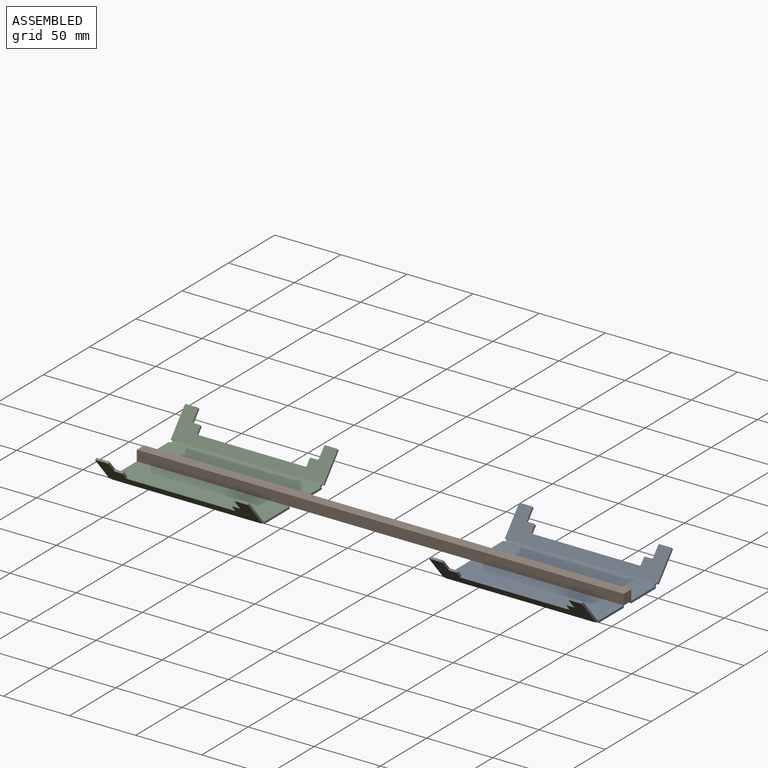
[diagram: assembled view]
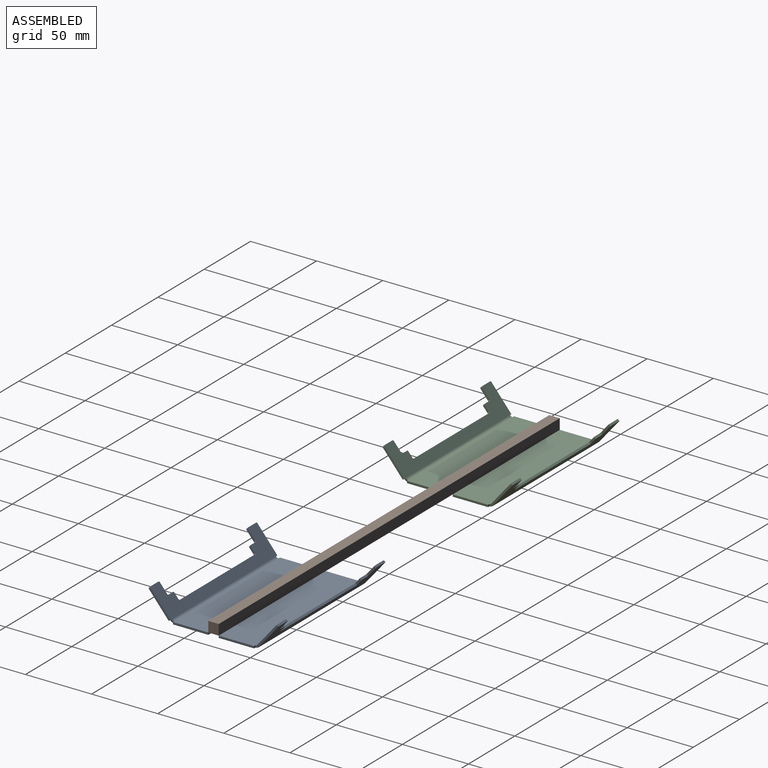
[diagram: assembled view, second angle]
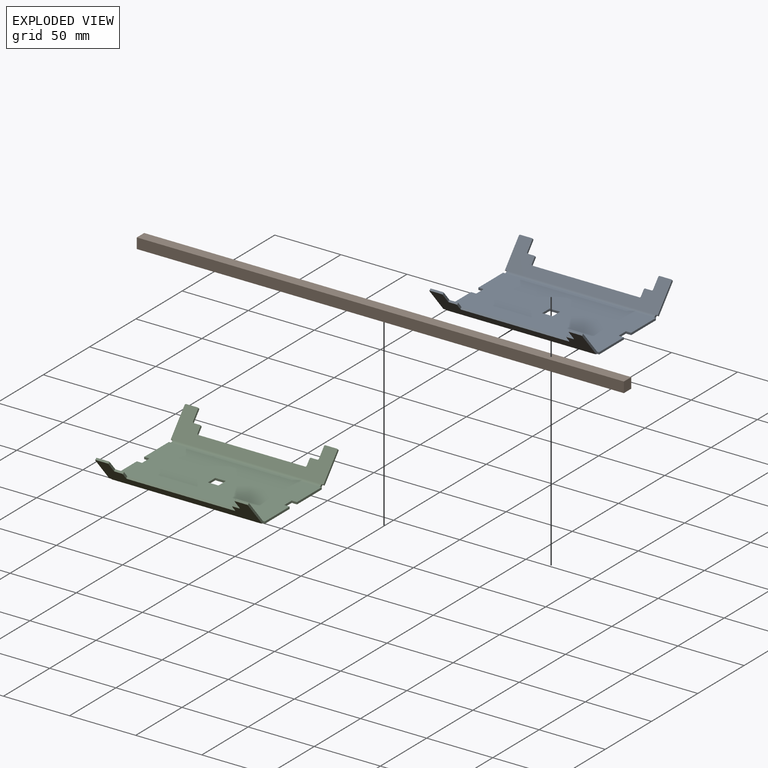
[diagram: exploded view]
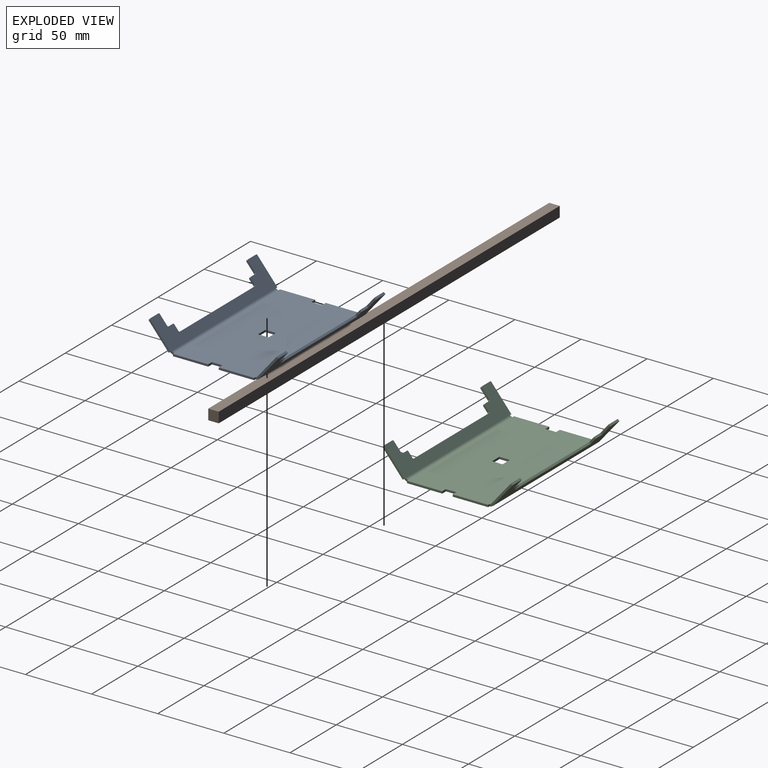
[diagram: exploded view, second angle]
ASSEMBLY  parts=3 mates=2
PART A: 78 faces, bbox 115.6x98.8x21 mm
  f0: plane 18.99x16.29mm, normal (1,0,0), area 37.2mm2, adj f20,f21,f22,f23
  f1: plane 8.64x1.22mm, normal (0,-0.64,0.77), area 13.7mm2, adj f2,f21,f22,f23
  f2: cylinder r=0.76mm len=1.71mm, axis (0,0.77,0.64), area 1.9mm2, adj f1,f3,f21,f22
  f3: plane 7.64x6.77mm, normal (-1,0,0), area 13.7mm2, adj f2,f4,f21,f22
  f4: cylinder r=0.76mm len=1.71mm, axis (0,0.77,0.64), area 1.9mm2, adj f3,f5,f21,f22
  f5: plane 4.83x1.22mm, normal (0,-0.64,0.77), area 7.7mm2, adj f4,f6,f21,f22
  f6: cylinder r=0.76mm len=1.71mm, axis (0,0.77,0.64), area 1.9mm2, adj f5,f7,f21,f22
  f7: plane 4.72x4.32mm, normal (-1,0,0), area 7.7mm2, adj f6,f8,f21,f22
  f8: cylinder r=0.76mm len=1.71mm, axis (0,0.77,0.64), area 1.9mm2, adj f7,f9,f21,f22
  f9: plane 81.03x1.22mm, normal (0,-0.64,0.77), area 128.6mm2, adj f8,f10,f21,f22
  f10: cylinder r=0.76mm len=1.71mm, axis (0,0.77,0.64), area 1.9mm2, adj f9,f11,f21,f22
  f11: plane 4.72x4.32mm, normal (1,0,0), area 7.7mm2, adj f10,f12,f21,f22
  f12: cylinder r=0.76mm len=1.71mm, axis (0,0.77,0.64), area 1.9mm2, adj f11,f13,f21,f22
  f13: plane 4.83x1.22mm, normal (0,-0.64,0.77), area 7.7mm2, adj f12,f14,f21,f22
  f14: cylinder r=0.76mm len=1.71mm, axis (0,0.77,0.64), area 1.9mm2, adj f13,f15,f21,f22
  f15: plane 7.64x6.77mm, normal (1,0,0), area 13.7mm2, adj f14,f16,f21,f22
  f16: cylinder r=0.76mm len=1.71mm, axis (0,0.77,0.64), area 1.9mm2, adj f15,f17,f21,f22
  f17: plane 8.64x1.22mm, normal (0,-0.64,0.77), area 13.7mm2, adj f16,f21,f22,f24
  f18: plane 18.99x16.29mm, normal (-1,0,0), area 37.2mm2, adj f19,f21,f22,f24
  f19: plane 1.52x1.22mm, normal (0,0.64,-0.77), area 2.4mm2, adj f18,f21,f22,f74
  f20: plane 1.52x1.22mm, normal (0,0.64,-0.77), area 2.4mm2, adj f0,f21,f22,f75
  f21: plane 115.57x18.55mm, normal (0,-0.77,-0.64), area 1306.4mm2, adj f0,f1,f2,f3,f4,f5,f6,f7
  f22: plane 115.57x18.55mm, normal (0,0.77,0.64), area 1306.4mm2, adj f0,f1,f2,f3,f4,f5,f6,f7
  f23: cylinder r=0.76mm len=1.71mm, axis (0,0.77,0.64), area 1.9mm2, adj f0,f1,f21,f22
  f24: cylinder r=0.76mm len=1.71mm, axis (0,-0.77,-0.64), area 1.9mm2, adj f17,f18,f21,f22
  f25: plane 26.69x1.59mm, normal (1,0,0), area 42.4mm2, adj f26,f42,f43,f44
  f26: plane 1.59x1.52mm, normal (0,-1,0), area 2.4mm2, adj f25,f43,f44,f75
  f27: plane 1.59x1.52mm, normal (0,-1,0), area 2.4mm2, adj f28,f43,f44,f74
  f28: plane 26.69x1.59mm, normal (-1,0,0), area 42.4mm2, adj f27,f29,f43,f44
  f29: plane 3.97x1.59mm, normal (0,1,0), area 6.3mm2, adj f28,f30,f43,f44
  f30: plane 7.94x1.59mm, normal (-1,0,0), area 12.6mm2, adj f29,f31,f43,f44
  f31: plane 3.97x1.59mm, normal (0,-1,0), area 6.3mm2, adj f30,f32,f43,f44
  f32: plane 26.69x1.59mm, normal (-1,0,0), area 42.4mm2, adj f31,f33,f43,f44
  f33: plane 1.59x1.52mm, normal (0,1,0), area 2.4mm2, adj f32,f43,f44,f70
  f34: plane 1.59x1.52mm, normal (0,1,0), area 2.4mm2, adj f35,f43,f44,f71
  f35: plane 26.69x1.59mm, normal (1,0,0), area 42.4mm2, adj f34,f36,f43,f44
  f36: plane 3.97x1.59mm, normal (0,-1,0), area 6.3mm2, adj f35,f37,f43,f44
  f37: plane 7.94x1.59mm, normal (1,0,0), area 12.6mm2, adj f36,f42,f43,f44
  f38: plane 7.94x1.59mm, normal (0,-1,0), area 12.6mm2, adj f39,f41,f43,f44
  f39: plane 7.94x1.59mm, normal (1,0,0), area 12.6mm2, adj f38,f40,f43,f44
  f40: plane 7.94x1.59mm, normal (0,1,0), area 12.6mm2, adj f39,f41,f43,f44
  f41: plane 7.94x1.59mm, normal (-1,0,0), area 12.6mm2, adj f38,f40,f43,f44
  f42: plane 3.97x1.59mm, normal (0,1,0), area 6.3mm2, adj f25,f37,f43,f44
  f43: plane 115.57x61.31mm, normal (0,0,-1), area 6959.5mm2, adj f25,f26,f27,f28,f29,f30,f31,f32
  f44: plane 115.57x61.31mm, normal (0,0,1), area 6959.5mm2, adj f25,f26,f27,f28,f29,f30,f31,f32
  f45: plane 1.52x1.22mm, normal (0,-0.64,-0.77), area 2.4mm2, adj f46,f66,f67,f70
  f46: plane 18.99x16.29mm, normal (-1,0,0), area 37.2mm2, adj f45,f66,f67,f68
  f47: plane 8.64x1.22mm, normal (0,0.64,0.77), area 13.7mm2, adj f48,f66,f67,f68
  f48: cylinder r=0.76mm len=1.71mm, axis (0,-0.77,0.64), area 1.9mm2, adj f47,f49,f66,f67
  f49: plane 7.64x6.77mm, normal (1,0,0), area 13.7mm2, adj f48,f50,f66,f67
  f50: cylinder r=0.76mm len=1.71mm, axis (0,-0.77,0.64), area 1.9mm2, adj f49,f51,f66,f67
  f51: plane 4.83x1.22mm, normal (0,0.64,0.77), area 7.7mm2, adj f50,f52,f66,f67
  f52: cylinder r=0.76mm len=1.71mm, axis (0,-0.77,0.64), area 1.9mm2, adj f51,f53,f66,f67
  f53: plane 4.72x4.32mm, normal (1,0,0), area 7.7mm2, adj f52,f54,f66,f67
  f54: cylinder r=0.76mm len=1.71mm, axis (0,-0.77,0.64), area 1.9mm2, adj f53,f55,f66,f67
  f55: plane 81.03x1.22mm, normal (0,0.64,0.77), area 128.6mm2, adj f54,f56,f66,f67
  f56: cylinder r=0.76mm len=1.71mm, axis (0,-0.77,0.64), area 1.9mm2, adj f55,f57,f66,f67
  f57: plane 4.72x4.32mm, normal (-1,0,0), area 7.7mm2, adj f56,f58,f66,f67
  f58: cylinder r=0.76mm len=1.71mm, axis (0,-0.77,0.64), area 1.9mm2, adj f57,f59,f66,f67
  f59: plane 4.83x1.22mm, normal (0,0.64,0.77), area 7.7mm2, adj f58,f60,f66,f67
  f60: cylinder r=0.76mm len=1.71mm, axis (0,-0.77,0.64), area 1.9mm2, adj f59,f61,f66,f67
  f61: plane 7.64x6.77mm, normal (-1,0,0), area 13.7mm2, adj f60,f62,f66,f67
  f62: cylinder r=0.76mm len=1.71mm, axis (0,-0.77,0.64), area 1.9mm2, adj f61,f63,f66,f67
  f63: plane 8.64x1.22mm, normal (0,0.64,0.77), area 13.7mm2, adj f62,f66,f67,f69
  f64: plane 18.99x16.29mm, normal (1,0,0), area 37.2mm2, adj f65,f66,f67,f69
  f65: plane 1.52x1.22mm, normal (0,-0.64,-0.77), area 2.4mm2, adj f64,f66,f67,f71
  f66: plane 115.57x18.55mm, normal (0,0.77,-0.64), area 1306.4mm2, adj f45,f46,f47,f48,f49,f50,f51,f52
  f67: plane 115.57x18.55mm, normal (0,-0.77,0.64), area 1306.4mm2, adj f45,f46,f47,f48,f49,f50,f51,f52
  f68: cylinder r=0.76mm len=1.71mm, axis (0,-0.77,0.64), area 1.9mm2, adj f46,f47,f66,f67
  f69: cylinder r=0.76mm len=1.71mm, axis (0,0.77,-0.64), area 1.9mm2, adj f63,f64,f66,f67
  f70: plane 3.16x2.5mm, normal (-1,0,0), area 4.6mm2, adj f33,f45,f72,f73
  f71: plane 3.16x2.5mm, normal (1,0,0), area 4.6mm2, adj f34,f65,f72,f73
  f72: cylinder r=4.13mm len=112.52mm, axis (-1,0,0), area 405.3mm2, adj f43,f66,f70,f71
  f73: cylinder r=2.54mm len=112.52mm, axis (-1,0,0), area 249.4mm2, adj f44,f67,f70,f71
  f74: plane 3.16x2.5mm, normal (-1,0,0), area 4.6mm2, adj f19,f27,f76,f77
  f75: plane 3.16x2.5mm, normal (1,0,0), area 4.6mm2, adj f20,f26,f76,f77
  f76: cylinder r=4.13mm len=112.52mm, axis (-1,0,0), area 405.3mm2, adj f21,f43,f74,f75
  f77: cylinder r=2.54mm len=112.52mm, axis (-1,0,0), area 249.4mm2, adj f22,f44,f74,f75
PART B: 6 faces, bbox 368.3x7.9x7.9 mm
  f0: plane 368.3x7.94mm, normal (0,0,-1), area 2923.4mm2, adj f1,f3,f4,f5
  f1: plane 368.3x7.94mm, normal (0,1,0), area 2923.4mm2, adj f0,f2,f4,f5
  f2: plane 368.3x7.94mm, normal (0,0,1), area 2923.4mm2, adj f1,f3,f4,f5
  f3: plane 368.3x7.94mm, normal (0,-1,0), area 2923.4mm2, adj f0,f2,f4,f5
  f4: plane 7.94x7.94mm, normal (1,0,0), area 63mm2, adj f0,f1,f2,f3
  f5: plane 7.94x7.94mm, normal (-1,0,0), area 63mm2, adj f0,f1,f2,f3
PART C: same geometry as A
PLACE A t=(89.76,-79.54,-91.57)mm
PLACE B t=(-36.6,-79.54,-87.61)mm
PLACE C t=(-162.97,-79.54,-91.57)mm
MATE fastened C.f44 <-> B.f0  axis (0,0,1) through (-220.75,-79.54,-91.57)mm
MATE fastened A.f44 <-> B.f0  axis (0,0,1) through (147.55,-79.54,-91.57)mm
